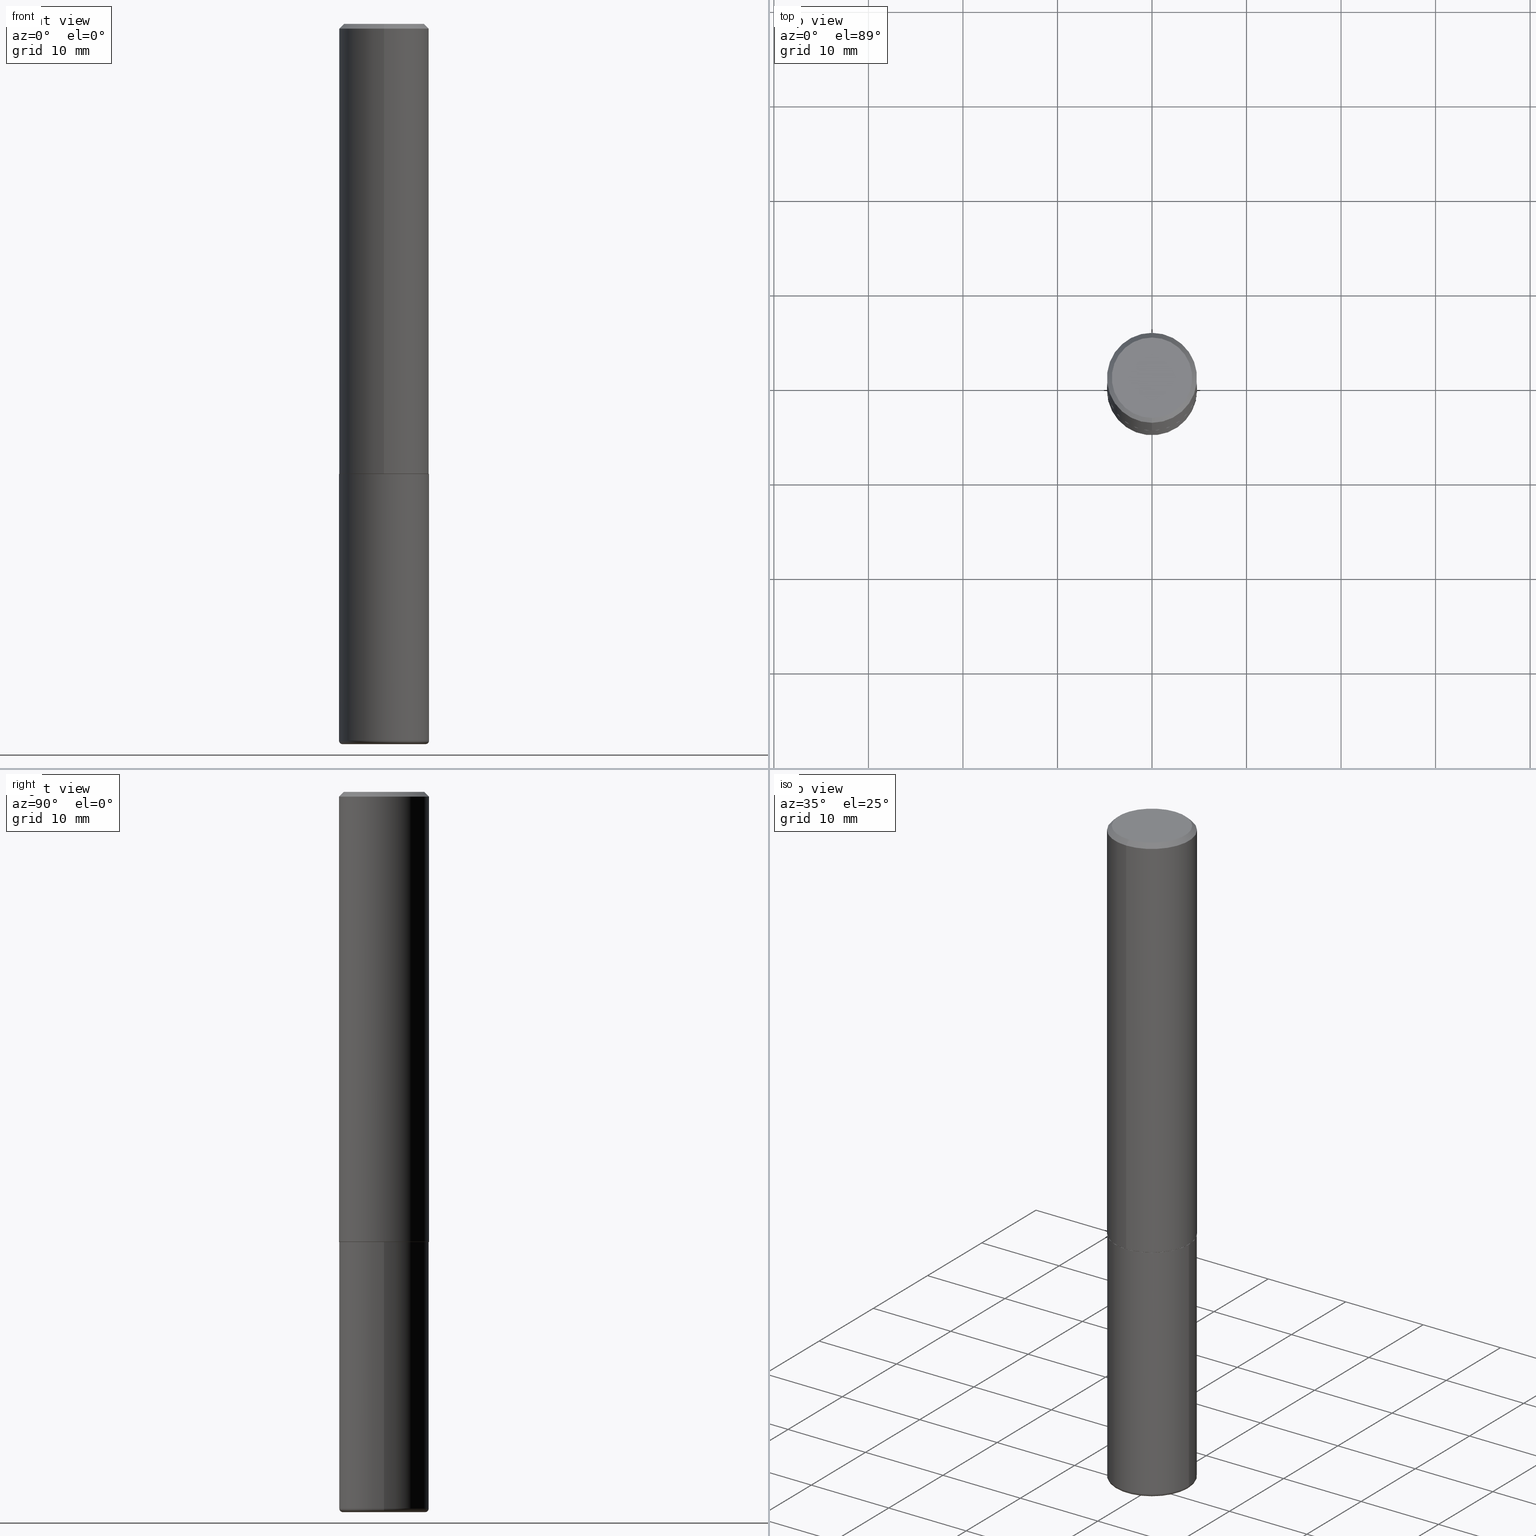
[diagram: canonical four-view strip — front | top / right | iso, engineering-drawing reading convention]
A machine part, canonical four-view strip (front | top / right | iso — engineering-drawing reading convention). The complete STEP part file that produces these views, byte-faithful:
ISO-10303-21;
HEADER;
FILE_DESCRIPTION (( 'STEP AP203' ),
    '1' );
FILE_NAME ('37481.STEP',
    '2024-03-02T02:20:10',
    ( '' ),
    ( '' ),
    'SwSTEP 2.0',
    'SolidWorks 2023',
    '' );
FILE_SCHEMA (( 'CONFIG_CONTROL_DESIGN' ));
ENDSEC;

DATA;
#1 = PRODUCT_DEFINITION_SHAPE ( 'NONE', 'NONE',  #308 ) ;
#2 = CARTESIAN_POINT ( 'NONE',  ( 1.774244268543582685E-45, -2.533246014083036310E-31, -7.255368094819153633E-17 ) ) ;
#3 = CONICAL_SURFACE ( 'NONE', #170, 0.1864999999999999714, 0.7853981633975165577 ) ;
#4 = APPROVAL_DATE_TIME ( #112, #234 ) ;
#5 = CYLINDRICAL_SURFACE ( 'NONE', #243, 0.1874999999999999722 ) ;
#6 = ADVANCED_FACE ( 'NONE', ( #345 ), #281, .T. ) ;
#7 = DIRECTION ( 'NONE',  ( -6.982962677686264344E-15, -1.000000000000000000, 3.491547197849207244E-15 ) ) ;
#8 = ORIENTED_EDGE ( 'NONE', *, *, #11, .T. ) ;
#9 = DIRECTION ( 'NONE',  ( 6.982962677686265922E-15, 1.000000000000000000, -3.491547197849208033E-15 ) ) ;
#10 = EDGE_LOOP ( 'NONE', ( #252, #114 ) ) ;
#11 = EDGE_CURVE ( 'NONE', #27, #251, #150, .T. ) ;
#12 = VERTEX_POINT ( 'NONE', #61 ) ;
#13 = EDGE_LOOP ( 'NONE', ( #412, #143 ) ) ;
#14 = LINE ( 'NONE', #401, #256 ) ;
#15 = ORIENTED_EDGE ( 'NONE', *, *, #241, .T. ) ;
#16 = EDGE_CURVE ( 'NONE', #223, #51, #372, .T. ) ;
#17 = FACE_OUTER_BOUND ( 'NONE', #118, .T. ) ;
#18 = AXIS2_PLACEMENT_3D ( 'NONE', #386, #240, #356 ) ;
#19 = DIRECTION ( 'NONE',  ( 1.000000000000000000, -6.982962677686266711E-15, 4.876176775795935793E-29 ) ) ;
#20 = PERSON_AND_ORGANIZATION_ROLE ( 'design_supplier' ) ;
#21 = VECTOR ( 'NONE', #139, 39.37007874015748143 ) ;
#22 = FACE_OUTER_BOUND ( 'NONE', #341, .T. ) ;
#23 = LINE ( 'NONE', #156, #403 ) ;
#24 = ORIENTED_EDGE ( 'NONE', *, *, #371, .F. ) ;
#25 = ORIENTED_EDGE ( 'NONE', *, *, #202, .T. ) ;
#26 = ADVANCED_FACE ( 'NONE', ( #132 ), #160, .T. ) ;
#27 = VERTEX_POINT ( 'NONE', #192 ) ;
#28 = AXIS2_PLACEMENT_3D ( 'NONE', #370, #195, #131 ) ;
#29 = CC_DESIGN_SECURITY_CLASSIFICATION ( #177, ( #48 ) ) ;
#30 = DIRECTION ( 'NONE',  ( -6.982962677686265922E-15, -1.000000000000000000, 2.929595703661408850E-15 ) ) ;
#31 = EDGE_LOOP ( 'NONE', ( #8, #280, #287, #406 ) ) ;
#32 = DATE_AND_TIME ( #227, #249 ) ;
#33 = CARTESIAN_POINT ( 'NONE',  ( 4.585167782038132942E-29, -6.546650995967265555E-15, -1.875000000000000000 ) ) ;
#34 = LINE ( 'NONE', #368, #88 ) ;
#35 = VECTOR ( 'NONE', #196, 39.37007874015748143 ) ;
#36 = LOCAL_TIME ( 21, 20, 10.00000000000000000, #410 ) ;
#37 = DIRECTION ( 'NONE',  ( 7.105427357601001859E-15, 1.000000000000000000, -3.491481338843145583E-15 ) ) ;
#38 = DIRECTION ( 'NONE',  ( 1.000000000000000000, -6.982962677686266711E-15, 0.000000000000000000 ) ) ;
#39 = EDGE_CURVE ( 'NONE', #221, #338, #128, .T. ) ;
#40 =( NAMED_UNIT ( * ) PLANE_ANGLE_UNIT ( ) SI_UNIT ( $, .RADIAN. ) );
#41 = CARTESIAN_POINT ( 'NONE',  ( 7.299724386462632472E-29, -1.042207179644678967E-14, -2.984999999999999876 ) ) ;
#42 = TOROIDAL_SURFACE ( 'NONE', #299, 0.1725000000000000144, 0.01499999999999983985 ) ;
#43 = CC_DESIGN_PERSON_AND_ORGANIZATION_ASSIGNMENT ( #348, #20, ( #48 ) ) ;
#44 = VERTEX_POINT ( 'NONE', #350 ) ;
#45 = ADVANCED_FACE ( 'NONE', ( #289 ), #58, .T. ) ;
#46 = ORIENTED_EDGE ( 'NONE', *, *, #148, .F. ) ;
#47 = AXIS2_PLACEMENT_3D ( 'NONE', #98, #258, #123 ) ;
#48 = PRODUCT_DEFINITION_FORMATION_WITH_SPECIFIED_SOURCE ( 'ANY', '', #230, .NOT_KNOWN. ) ;
#49 = EDGE_LOOP ( 'NONE', ( #336, #362, #283, #79 ) ) ;
#50 = EDGE_LOOP ( 'NONE', ( #261, #188, #247, #193 ) ) ;
#51 = VERTEX_POINT ( 'NONE', #125 ) ;
#52 = CARTESIAN_POINT ( 'NONE',  ( 7.299724386462632472E-29, -1.042207179644678967E-14, -2.984999999999999876 ) ) ;
#53 = CARTESIAN_POINT ( 'NONE',  ( -0.1874999999999999722, 1.332267629550187651E-15, -9.223003294227946589E-30 ) ) ;
#54 = APPLICATION_PROTOCOL_DEFINITION ( 'international standard', 'config_control_design', 1994, #330 ) ;
#55 = DIRECTION ( 'NONE',  ( -2.445468806185136597E-29, 3.491481338843145583E-15, 1.000000000000000000 ) ) ;
#56 = DATE_TIME_ROLE ( 'creation_date' ) ;
#57 = CARTESIAN_POINT ( 'NONE',  ( -1.286343374582161379E-15, -0.1875000000000000555, -0.01999999999999938979 ) ) ;
#58 = CYLINDRICAL_SURFACE ( 'NONE', #366, 0.1874999999999999722 ) ;
#59 = PERSON_AND_ORGANIZATION ( #236, #152 ) ;
#60 = CC_DESIGN_DATE_AND_TIME_ASSIGNMENT ( #126, #56, ( #308 ) ) ;
#61 = CARTESIAN_POINT ( 'NONE',  ( -1.286343374582161379E-15, -0.1875000000000000555, -0.01999999999999938979 ) ) ;
#62 = PERSON_AND_ORGANIZATION ( #236, #152 ) ;
#63 = AXIS2_PLACEMENT_3D ( 'NONE', #185, #122, #127 ) ;
#64 = AXIS2_PLACEMENT_3D ( 'NONE', #71, #354, #65 ) ;
#65 = DIRECTION ( 'NONE',  ( -6.982962677686265922E-15, -1.000000000000000000, 2.913971193241877611E-15 ) ) ;
#66 = CARTESIAN_POINT ( 'NONE',  ( 0.1725000000000000144, -1.167900507843031484E-14, -2.999999999999999556 ) ) ;
#67 = EDGE_CURVE ( 'NONE', #338, #51, #383, .T. ) ;
#68 = DIRECTION ( 'NONE',  ( -2.445422817087004124E-29, 3.491547197849208033E-15, 1.000000000000000000 ) ) ;
#69 = ADVANCED_FACE ( 'NONE', ( #229 ), #102, .T. ) ;
#70 = ADVANCED_BREP_SHAPE_REPRESENTATION ( '37481', ( #309, #174, #328 ), #353 ) ;
#71 = CARTESIAN_POINT ( 'NONE',  ( 4.582722359221045613E-29, -6.543159448769415354E-15, -1.874000000000000110 ) ) ;
#72 = CC_DESIGN_PERSON_AND_ORGANIZATION_ASSIGNMENT ( #59, #197, ( #177 ) ) ;
#73 = VERTEX_POINT ( 'NONE', #226 ) ;
#74 = CARTESIAN_POINT ( 'NONE',  ( 4.890845634174019353E-31, -6.983094395698430266E-17, -0.02000000000000004205 ) ) ;
#75 = AXIS2_PLACEMENT_3D ( 'NONE', #52, #284, #346 ) ;
#76 = AXIS2_PLACEMENT_3D ( 'NONE', #104, #305, #100 ) ;
#77 = EDGE_CURVE ( 'NONE', #44, #27, #377, .T. ) ;
#78 = ORIENTED_EDGE ( 'NONE', *, *, #297, .F. ) ;
#79 = ORIENTED_EDGE ( 'NONE', *, *, #358, .F. ) ;
#80 = AXIS2_PLACEMENT_3D ( 'NONE', #87, #343, #324 ) ;
#81 = AXIS2_PLACEMENT_3D ( 'NONE', #74, #355, #385 ) ;
#82 = ORIENTED_EDGE ( 'NONE', *, *, #39, .T. ) ;
#83 = EDGE_CURVE ( 'NONE', #147, #221, #390, .T. ) ;
#84 = DIRECTION ( 'NONE',  ( -6.982962677686265922E-15, -1.000000000000000000, 3.491547197849208033E-15 ) ) ;
#85 = DIRECTION ( 'NONE',  ( -2.445468806185136597E-29, 3.491481338843145583E-15, 1.000000000000000000 ) ) ;
#86 = CC_DESIGN_PERSON_AND_ORGANIZATION_ASSIGNMENT ( #375, #161, ( #48 ) ) ;
#87 = CARTESIAN_POINT ( 'NONE',  ( 4.582722359221045613E-29, -6.543159448769415354E-15, -1.874000000000000110 ) ) ;
#88 = VECTOR ( 'NONE', #228, 39.37007874015748143 ) ;
#89 = VERTEX_POINT ( 'NONE', #66 ) ;
#90 = DIRECTION ( 'NONE',  ( 0.000000000000000000, 0.000000000000000000, 1.000000000000000000 ) ) ;
#91 = LOCAL_TIME ( 21, 20, 10.00000000000000000, #154 ) ;
#92 = ADVANCED_FACE ( 'NONE', ( #137 ), #200, .F. ) ;
#93 = FACE_OUTER_BOUND ( 'NONE', #31, .T. ) ;
#94 = CARTESIAN_POINT ( 'NONE',  ( -1.302322539388442648E-15, -0.1865000000000065217, -1.874999999999999556 ) ) ;
#95 = COORDINATED_UNIVERSAL_TIME_OFFSET ( 5, 0, .BEHIND. ) ;
#96 = APPROVAL ( #326, 'UNSPECIFIED' ) ;
#97 = CARTESIAN_POINT ( 'NONE',  ( 1.239475875289312499E-15, 0.1675000000000000655, -6.573878365879339248E-16 ) ) ;
#98 = CARTESIAN_POINT ( 'NONE',  ( 4.890845634174019353E-31, -6.983094395698430266E-17, -0.02000000000000004205 ) ) ;
#99 = EDGE_CURVE ( 'NONE', #27, #12, #34, .T. ) ;
#100 = DIRECTION ( 'NONE',  ( 1.000000000000000000, -6.982962677686261977E-15, 0.000000000000000000 ) ) ;
#101 = APPROVAL_ROLE ( '' ) ;
#102 = TOROIDAL_SURFACE ( 'NONE', #254, 0.1725000000000000144, 0.01499999999999983985 ) ;
#103 = AXIS2_PLACEMENT_3D ( 'NONE', #207, #144, #9 ) ;
#104 = CARTESIAN_POINT ( 'NONE',  ( 7.336406418555408669E-29, -1.047444401652943478E-14, -2.999999999999999556 ) ) ;
#105 =( NAMED_UNIT ( * ) SI_UNIT ( $, .STERADIAN. ) SOLID_ANGLE_UNIT ( ) );
#106 = APPROVAL_ROLE ( '' ) ;
#107 = EDGE_CURVE ( 'NONE', #147, #89, #273, .T. ) ;
#108 = CIRCLE ( 'NONE', #322, 0.1864999999999999714 ) ;
#109 = DIRECTION ( 'NONE',  ( -2.445468806185136597E-29, 3.491481338843145583E-15, 1.000000000000000000 ) ) ;
#110 = CC_DESIGN_PERSON_AND_ORGANIZATION_ASSIGNMENT ( #62, #382, ( #308 ) ) ;
#111 = LINE ( 'NONE', #180, #21 ) ;
#112 = DATE_AND_TIME ( #301, #146 ) ;
#113 = DIRECTION ( 'NONE',  ( -2.445422817087004124E-29, 3.491547197849208033E-15, 1.000000000000000000 ) ) ;
#114 = ORIENTED_EDGE ( 'NONE', *, *, #365, .T. ) ;
#115 = FACE_OUTER_BOUND ( 'NONE', #363, .T. ) ;
#116 = CIRCLE ( 'NONE', #238, 0.1874999999999999722 ) ;
#117 = ORIENTED_EDGE ( 'NONE', *, *, #83, .F. ) ;
#118 = EDGE_LOOP ( 'NONE', ( #153, #145 ) ) ;
#119 = EDGE_CURVE ( 'NONE', #223, #221, #315, .T. ) ;
#120 = DIRECTION ( 'NONE',  ( 4.937700262164541731E-15, 0.7071067811865442421, -0.7071067811865507924 ) ) ;
#121 = ORIENTED_EDGE ( 'NONE', *, *, #202, .F. ) ;
#122 = DIRECTION ( 'NONE',  ( -2.445468806185136597E-29, 3.491481338843145583E-15, 1.000000000000000000 ) ) ;
#123 = DIRECTION ( 'NONE',  ( 6.982962677686266711E-15, 1.000000000000000000, -3.483106191921935949E-15 ) ) ;
#124 = FACE_OUTER_BOUND ( 'NONE', #49, .T. ) ;
#125 = CARTESIAN_POINT ( 'NONE',  ( 0.1875000000000000278, -7.855833012397073715E-15, -1.875000000000000000 ) ) ;
#126 = DATE_AND_TIME ( #271, #367 ) ;
#127 = DIRECTION ( 'NONE',  ( 1.000000000000000000, -6.982962677686263555E-15, 0.000000000000000000 ) ) ;
#128 = LINE ( 'NONE', #53, #182 ) ;
#129 = SECURITY_CLASSIFICATION_LEVEL ( 'unclassified' ) ;
#130 = AXIS2_PLACEMENT_3D ( 'NONE', #323, #393, #38 ) ;
#131 = DIRECTION ( 'NONE',  ( -6.982962677686265922E-15, -1.000000000000000000, 2.929595703661408850E-15 ) ) ;
#132 = FACE_OUTER_BOUND ( 'NONE', #13, .T. ) ;
#133 = PERSON_AND_ORGANIZATION ( #236, #152 ) ;
#134 = DIRECTION ( 'NONE',  ( 1.000000000000000000, 0.000000000000000000, 0.000000000000000000 ) ) ;
#135 = CARTESIAN_POINT ( 'NONE',  ( 4.585167782038132942E-29, -6.546650995967265555E-15, -1.875000000000000000 ) ) ;
#136 = AXIS2_PLACEMENT_3D ( 'NONE', #349, #260, #191 ) ;
#137 = FACE_OUTER_BOUND ( 'NONE', #352, .T. ) ;
#138 = CC_DESIGN_DATE_AND_TIME_ASSIGNMENT ( #242, #168, ( #177 ) ) ;
#139 = DIRECTION ( 'NONE',  ( -2.445422817087003844E-29, 3.491547197849208033E-15, 1.000000000000000000 ) ) ;
#140 = CIRCLE ( 'NONE', #165, 0.1864999999999999714 ) ;
#141 = CARTESIAN_POINT ( 'NONE',  ( 4.890845634174019353E-31, -6.983094395698430266E-17, -0.02000000000000004205 ) ) ;
#142 = ADVANCED_FACE ( 'NONE', ( #93 ), #159, .T. ) ;
#143 = ORIENTED_EDGE ( 'NONE', *, *, #107, .F. ) ;
#144 = DIRECTION ( 'NONE',  ( 2.445422817087003844E-29, -3.491547197849208033E-15, -1.000000000000000000 ) ) ;
#145 = ORIENTED_EDGE ( 'NONE', *, *, #306, .F. ) ;
#146 = LOCAL_TIME ( 21, 20, 10.00000000000000000, #172 ) ;
#147 = VERTEX_POINT ( 'NONE', #405 ) ;
#148 = EDGE_CURVE ( 'NONE', #221, #223, #376, .T. ) ;
#149 = VERTEX_POINT ( 'NONE', #411 ) ;
#150 = CIRCLE ( 'NONE', #80, 0.1875000000000001943 ) ;
#151 = CARTESIAN_POINT ( 'NONE',  ( 4.585167782038132942E-29, -6.546650995967265555E-15, -1.875000000000000000 ) ) ;
#152 = ORGANIZATION ( 'UNSPECIFIED', 'UNSPECIFIED', '' ) ;
#153 = ORIENTED_EDGE ( 'NONE', *, *, #255, .F. ) ;
#154 = COORDINATED_UNIVERSAL_TIME_OFFSET ( 5, 0, .BEHIND. ) ;
#155 = ADVANCED_FACE ( 'NONE', ( #17 ), #317, .F. ) ;
#156 = CARTESIAN_POINT ( 'NONE',  ( 1.325162202192632397E-15, 0.1864999999999934210, -1.875000000000000666 ) ) ;
#157 = DIRECTION ( 'NONE',  ( -2.445468806185136877E-29, 3.491481338843145188E-15, 1.000000000000000000 ) ) ;
#158 = PERSON_AND_ORGANIZATION ( #236, #152 ) ;
#159 = CYLINDRICAL_SURFACE ( 'NONE', #136, 0.1875000000000000833 ) ;
#160 = PLANE ( 'NONE',  #332 ) ;
#161 = PERSON_AND_ORGANIZATION_ROLE ( 'creator' ) ;
#162 = VECTOR ( 'NONE', #157, 39.37007874015748143 ) ;
#163 = ORIENTED_EDGE ( 'NONE', *, *, #198, .T. ) ;
#164 = CARTESIAN_POINT ( 'NONE',  ( 0.000000000000000000, 0.000000000000000000, 0.000000000000000000 ) ) ;
#165 = AXIS2_PLACEMENT_3D ( 'NONE', #33, #327, #167 ) ;
#166 = ORIENTED_EDGE ( 'NONE', *, *, #169, .T. ) ;
#167 = DIRECTION ( 'NONE',  ( -6.982962677686265922E-15, -1.000000000000000000, 2.929595703661408850E-15 ) ) ;
#168 = DATE_TIME_ROLE ( 'classification_date' ) ;
#169 = EDGE_CURVE ( 'NONE', #73, #12, #262, .T. ) ;
#170 = AXIS2_PLACEMENT_3D ( 'NONE', #135, #68, #201 ) ;
#171 = ADVANCED_FACE ( 'NONE', ( #219 ), #248, .T. ) ;
#172 = COORDINATED_UNIVERSAL_TIME_OFFSET ( 5, 0, .BEHIND. ) ;
#173 = CARTESIAN_POINT ( 'NONE',  ( -0.1875000000000000278, -7.152032023838655550E-15, -1.875000000000000000 ) ) ;
#174 = MANIFOLD_SOLID_BREP ( 'Body-Move/Copy2[2]', #292 ) ;
#175 = AXIS2_PLACEMENT_3D ( 'NONE', #222, #267, #344 ) ;
#176 = DIRECTION ( 'NONE',  ( -6.982962677686266711E-15, -1.000000000000000000, 3.491481338843145583E-15 ) ) ;
#177 = SECURITY_CLASSIFICATION ( '', '', #129 ) ;
#178 = ORIENTED_EDGE ( 'NONE', *, *, #77, .T. ) ;
#179 = CC_DESIGN_PERSON_AND_ORGANIZATION_ASSIGNMENT ( #290, #321, ( #230 ) ) ;
#180 = CARTESIAN_POINT ( 'NONE',  ( 1.332267629550188243E-15, 0.1875000000000000833, -6.546650995967267527E-16 ) ) ;
#181 = ORIENTED_EDGE ( 'NONE', *, *, #16, .F. ) ;
#182 = VECTOR ( 'NONE', #296, 39.37007874015748143 ) ;
#183 = CIRCLE ( 'NONE', #293, 0.1675000000000000655 ) ;
#184 = ORIENTED_EDGE ( 'NONE', *, *, #99, .T. ) ;
#185 = CARTESIAN_POINT ( 'NONE',  ( 7.299724386462632472E-29, -1.042207179644678967E-14, -2.984999999999999876 ) ) ;
#186 = ORIENTED_EDGE ( 'NONE', *, *, #220, .F. ) ;
#187 = DIRECTION ( 'NONE',  ( -2.445468806185136597E-29, 3.491481338843145583E-15, 1.000000000000000000 ) ) ;
#188 = ORIENTED_EDGE ( 'NONE', *, *, #286, .F. ) ;
#189 = DIRECTION ( 'NONE',  ( -6.982962677686266711E-15, -1.000000000000000000, 3.491547197849207639E-15 ) ) ;
#190 = CIRCLE ( 'NONE', #175, 0.1874999999999999722 ) ;
#191 = DIRECTION ( 'NONE',  ( -6.982962677686266711E-15, -1.000000000000000000, 3.491547197849207639E-15 ) ) ;
#192 = CARTESIAN_POINT ( 'NONE',  ( -1.309305502066130438E-15, -0.1875000000000067446, -1.873999999999999444 ) ) ;
#193 = ORIENTED_EDGE ( 'NONE', *, *, #371, .T. ) ;
#194 = CALENDAR_DATE ( 2024, 1, 3 ) ;
#195 = DIRECTION ( 'NONE',  ( -2.445422817087004124E-29, 3.491547197849208033E-15, 1.000000000000000000 ) ) ;
#196 = DIRECTION ( 'NONE',  ( -4.937700262164884886E-15, -0.7071067811865933139, 0.7071067811865017205 ) ) ;
#197 = PERSON_AND_ORGANIZATION_ROLE ( 'classification_officer' ) ;
#198 = EDGE_CURVE ( 'NONE', #12, #295, #190, .T. ) ;
#199 = DIRECTION ( 'NONE',  ( -1.000000000000000000, 6.982962677686265922E-15, -4.876176775795935793E-29 ) ) ;
#200 = PLANE ( 'NONE',  #18 ) ;
#201 = DIRECTION ( 'NONE',  ( -6.982962677686265922E-15, -1.000000000000000000, 2.929595703661408850E-15 ) ) ;
#202 = EDGE_CURVE ( 'NONE', #149, #251, #23, .T. ) ;
#203 = DESIGN_CONTEXT ( 'detailed design', #378, 'design' ) ;
#204 = VECTOR ( 'NONE', #379, 39.37007874015748143 ) ;
#205 =( LENGTH_UNIT ( ) NAMED_UNIT ( * ) SI_UNIT ( $, .METRE. ) );
#206 = APPROVAL_STATUS ( 'not_yet_approved' ) ;
#207 = CARTESIAN_POINT ( 'NONE',  ( 1.169646248512449792E-15, 0.1675000000000000655, -6.211109961138383353E-16 ) ) ;
#208 = ORIENTED_EDGE ( 'NONE', *, *, #241, .F. ) ;
#209 = AXIS2_PLACEMENT_3D ( 'NONE', #278, #37, #276 ) ;
#210 = APPROVAL_PERSON_ORGANIZATION ( #133, #96, #416 ) ;
#211 = CARTESIAN_POINT ( 'NONE',  ( 0.1725000000000000144, -1.162663285834766973E-14, -2.984999999999999876 ) ) ;
#212 = ORIENTED_EDGE ( 'NONE', *, *, #365, .F. ) ;
#213 = ORIENTED_EDGE ( 'NONE', *, *, #297, .T. ) ;
#214 = VERTEX_POINT ( 'NONE', #97 ) ;
#215 = FACE_OUTER_BOUND ( 'NONE', #304, .T. ) ;
#216 = AXIS2_PLACEMENT_3D ( 'NONE', #373, #187, #294 ) ;
#217 = CIRCLE ( 'NONE', #64, 0.1875000000000001943 ) ;
#218 = ORIENTED_EDGE ( 'NONE', *, *, #67, .T. ) ;
#219 = FACE_OUTER_BOUND ( 'NONE', #359, .T. ) ;
#220 = EDGE_CURVE ( 'NONE', #214, #295, #14, .T. ) ;
#221 = VERTEX_POINT ( 'NONE', #288 ) ;
#222 = CARTESIAN_POINT ( 'NONE',  ( 4.890845634174019353E-31, -6.983094395698430266E-17, -0.02000000000000004205 ) ) ;
#223 = VERTEX_POINT ( 'NONE', #257 ) ;
#224 = APPLICATION_PROTOCOL_DEFINITION ( 'international standard', 'config_control_design', 1994, #378 ) ;
#225 = APPROVAL_PERSON_ORGANIZATION ( #158, #384, #101 ) ;
#226 = CARTESIAN_POINT ( 'NONE',  ( -1.217738394604446442E-15, -0.1675000000000000655, 5.122804746915509754E-16 ) ) ;
#227 = CALENDAR_DATE ( 2024, 1, 3 ) ;
#228 = DIRECTION ( 'NONE',  ( -2.445422817087003844E-29, 3.491547197849208033E-15, 1.000000000000000000 ) ) ;
#229 = FACE_OUTER_BOUND ( 'NONE', #310, .T. ) ;
#230 = PRODUCT ( '37481', '37481', '', ( #415 ) ) ;
#231 = ADVANCED_FACE ( 'NONE', ( #124 ), #42, .T. ) ;
#232 = CARTESIAN_POINT ( 'NONE',  ( 1.397167340320572577E-28, -9.723640385667771446E-16, -2.999999999999999556 ) ) ;
#233 = APPROVAL_STATUS ( 'not_yet_approved' ) ;
#234 = APPROVAL ( #206, 'UNSPECIFIED' ) ;
#235 = FACE_OUTER_BOUND ( 'NONE', #10, .T. ) ;
#236 = PERSON ( 'UNSPECIFIED', 'UNSPECIFIED', 'UNSPECIFIED', ('UNSPECIFIED'), ('UNSPECIFIED'), ('UNSPECIFIED') ) ;
#237 = APPROVAL_DATE_TIME ( #264, #384 ) ;
#238 = AXIS2_PLACEMENT_3D ( 'NONE', #141, #360, #342 ) ;
#239 = PLANE ( 'NONE',  #103 ) ;
#240 = DIRECTION ( 'NONE',  ( 2.438088387897960049E-29, -3.491481338843145188E-15, -1.000000000000000000 ) ) ;
#241 = EDGE_CURVE ( 'NONE', #51, #338, #265, .T. ) ;
#242 = DATE_AND_TIME ( #269, #91 ) ;
#243 = AXIS2_PLACEMENT_3D ( 'NONE', #300, #109, #329 ) ;
#244 = UNCERTAINTY_MEASURE_WITH_UNIT (LENGTH_MEASURE( 1.000000000000000082E-05 ), #388, 'distance_accuracy_value', 'NONE');
#245 = DIRECTION ( 'NONE',  ( -6.982962677686264344E-15, -1.000000000000000000, 3.491547197849207244E-15 ) ) ;
#246 = CARTESIAN_POINT ( 'NONE',  ( 1.309305502066175205E-15, 0.1874999999999999167, -0.02000000000000069431 ) ) ;
#247 = ORIENTED_EDGE ( 'NONE', *, *, #220, .T. ) ;
#248 = CONICAL_SURFACE ( 'NONE', #28, 0.1864999999999999714, 0.7853981633975165577 ) ;
#249 = LOCAL_TIME ( 21, 20, 10.00000000000000000, #351 ) ;
#250 = EDGE_CURVE ( 'NONE', #251, #295, #111, .T. ) ;
#251 = VERTEX_POINT ( 'NONE', #270 ) ;
#252 = ORIENTED_EDGE ( 'NONE', *, *, #286, .T. ) ;
#253 = ORIENTED_EDGE ( 'NONE', *, *, #358, .T. ) ;
#254 = AXIS2_PLACEMENT_3D ( 'NONE', #347, #55, #319 ) ;
#255 = EDGE_CURVE ( 'NONE', #44, #149, #108, .T. ) ;
#256 = VECTOR ( 'NONE', #120, 39.37007874015748143 ) ;
#257 = CARTESIAN_POINT ( 'NONE',  ( 0.1874999999999999167, -1.173137729851296152E-14, -2.984999999999999876 ) ) ;
#258 = DIRECTION ( 'NONE',  ( 2.445422817087004124E-29, -3.491547197849208033E-15, -1.000000000000000000 ) ) ;
#259 = DIRECTION ( 'NONE',  ( -2.445422817087004124E-29, 3.491547197849208033E-15, 1.000000000000000000 ) ) ;
#260 = DIRECTION ( 'NONE',  ( -2.445422817087004124E-29, 3.491547197849208033E-15, 1.000000000000000000 ) ) ;
#261 = ORIENTED_EDGE ( 'NONE', *, *, #169, .F. ) ;
#262 = LINE ( 'NONE', #57, #204 ) ;
#263 = DIRECTION ( 'NONE',  ( 1.000000000000000000, -6.982962677686266711E-15, 0.000000000000000000 ) ) ;
#264 = DATE_AND_TIME ( #194, #36 ) ;
#265 = CIRCLE ( 'NONE', #130, 0.1875000000000000278 ) ;
#266 = EDGE_CURVE ( 'NONE', #89, #147, #340, .T. ) ;
#267 = DIRECTION ( 'NONE',  ( -2.445422817087004124E-29, 3.491547197849208033E-15, 1.000000000000000000 ) ) ;
#268 = ORIENTED_EDGE ( 'NONE', *, *, #148, .T. ) ;
#269 = CALENDAR_DATE ( 2024, 1, 3 ) ;
#270 = CARTESIAN_POINT ( 'NONE',  ( 1.332267629550211909E-15, 0.1874999999999936162, -1.874000000000000554 ) ) ;
#271 = CALENDAR_DATE ( 2024, 1, 3 ) ;
#272 = ADVANCED_FACE ( 'NONE', ( #235 ), #239, .F. ) ;
#273 = CIRCLE ( 'NONE', #216, 0.1725000000000000144 ) ;
#274 = CARTESIAN_POINT ( 'NONE',  ( 1.774244268543582685E-45, -2.533246014083036310E-31, -7.255368094819153633E-17 ) ) ;
#275 = CIRCLE ( 'NONE', #335, 0.01499999999999983985 ) ;
#276 = DIRECTION ( 'NONE',  ( -1.000000000000000000, 7.105427357600937172E-15, 0.000000000000000000 ) ) ;
#277 = PRODUCT_RELATED_PRODUCT_CATEGORY ( 'detail', '', ( #230 ) ) ;
#278 = CARTESIAN_POINT ( 'NONE',  ( -0.1725000000000000144, -9.196385577260614576E-15, -2.984999999999999876 ) ) ;
#279 = DIRECTION ( 'NONE',  ( 1.000000000000000000, -6.982962677686269077E-15, 4.883557194083112901E-29 ) ) ;
#280 = ORIENTED_EDGE ( 'NONE', *, *, #250, .T. ) ;
#281 = CONICAL_SURFACE ( 'NONE', #47, 0.1874999999999999722, 0.7853981633974471688 ) ;
#282 = CC_DESIGN_APPROVAL ( #384, ( #48 ) ) ;
#283 = ORIENTED_EDGE ( 'NONE', *, *, #119, .F. ) ;
#284 = DIRECTION ( 'NONE',  ( -2.445468806185136597E-29, 3.491481338843145583E-15, 1.000000000000000000 ) ) ;
#285 = ORIENTED_EDGE ( 'NONE', *, *, #306, .T. ) ;
#286 = EDGE_CURVE ( 'NONE', #214, #73, #183, .T. ) ;
#287 = ORIENTED_EDGE ( 'NONE', *, *, #198, .F. ) ;
#288 = CARTESIAN_POINT ( 'NONE',  ( -0.1874999999999999167, -9.089804166896601820E-15, -2.984999999999999876 ) ) ;
#289 = FACE_OUTER_BOUND ( 'NONE', #318, .T. ) ;
#290 = PERSON_AND_ORGANIZATION ( #236, #152 ) ;
#291 = ORIENTED_EDGE ( 'NONE', *, *, #39, .F. ) ;
#292 = CLOSED_SHELL ( 'NONE', ( #312, #142, #334, #6, #389, #171, #155, #272 ) ) ;
#293 = AXIS2_PLACEMENT_3D ( 'NONE', #274, #395, #245 ) ;
#294 = DIRECTION ( 'NONE',  ( 1.000000000000000000, -6.982962677686261977E-15, 0.000000000000000000 ) ) ;
#295 = VERTEX_POINT ( 'NONE', #246 ) ;
#296 = DIRECTION ( 'NONE',  ( -2.445468806185136877E-29, 3.491481338843145188E-15, 1.000000000000000000 ) ) ;
#297 = EDGE_CURVE ( 'NONE', #251, #27, #217, .T. ) ;
#298 = FACE_OUTER_BOUND ( 'NONE', #337, .T. ) ;
#299 = AXIS2_PLACEMENT_3D ( 'NONE', #41, #392, #279 ) ;
#300 = CARTESIAN_POINT ( 'NONE',  ( 0.000000000000000000, 0.000000000000000000, 0.000000000000000000 ) ) ;
#301 = CALENDAR_DATE ( 2024, 1, 3 ) ;
#302 = AXIS2_PLACEMENT_3D ( 'NONE', #151, #408, #84 ) ;
#303 = DIRECTION ( 'NONE',  ( -2.445422817087004124E-29, 3.491547197849208033E-15, 1.000000000000000000 ) ) ;
#304 = EDGE_LOOP ( 'NONE', ( #380, #213, #184, #24 ) ) ;
#305 = DIRECTION ( 'NONE',  ( -2.445468806185136597E-29, 3.491481338843145583E-15, 1.000000000000000000 ) ) ;
#306 = EDGE_CURVE ( 'NONE', #149, #44, #140, .T. ) ;
#307 = ORIENTED_EDGE ( 'NONE', *, *, #119, .T. ) ;
#308 = PRODUCT_DEFINITION ( 'UNKNOWN', '', #48, #203 ) ;
#309 = MANIFOLD_SOLID_BREP ( 'Body-Move/Copy2[1]', #396 ) ;
#310 = EDGE_LOOP ( 'NONE', ( #117, #364, #253, #46 ) ) ;
#311 = DIRECTION ( 'NONE',  ( 5.024295867788404755E-15, 0.7071067811865981989, 0.7071067811864968355 ) ) ;
#312 = ADVANCED_FACE ( 'NONE', ( #115 ), #3, .T. ) ;
#313 = DIRECTION ( 'NONE',  ( 2.438088387897960049E-29, -3.491481338843145188E-15, -1.000000000000000000 ) ) ;
#314 = APPROVAL_DATE_TIME ( #32, #96 ) ;
#315 = CIRCLE ( 'NONE', #75, 0.1874999999999999722 ) ;
#316 = AXIS2_PLACEMENT_3D ( 'NONE', #2, #303, #7 ) ;
#317 = PLANE ( 'NONE',  #302 ) ;
#318 = EDGE_LOOP ( 'NONE', ( #291, #268, #398, #399 ) ) ;
#319 = DIRECTION ( 'NONE',  ( 1.000000000000000000, -6.982962677686269077E-15, 4.883557194083112901E-29 ) ) ;
#320 = ORIENTED_EDGE ( 'NONE', *, *, #255, .T. ) ;
#321 = PERSON_AND_ORGANIZATION_ROLE ( 'design_owner' ) ;
#322 = AXIS2_PLACEMENT_3D ( 'NONE', #381, #113, #30 ) ;
#323 = CARTESIAN_POINT ( 'NONE',  ( 4.585254011597131119E-29, -6.546527510330898707E-15, -1.875000000000000000 ) ) ;
#324 = DIRECTION ( 'NONE',  ( -6.982962677686265922E-15, -1.000000000000000000, 2.913971193241877611E-15 ) ) ;
#325 = DIMENSIONAL_EXPONENTS ( 1.000000000000000000, 0.000000000000000000, 0.000000000000000000, 0.000000000000000000, 0.000000000000000000, 0.000000000000000000, 0.000000000000000000 ) ;
#326 = APPROVAL_STATUS ( 'not_yet_approved' ) ;
#327 = DIRECTION ( 'NONE',  ( -2.445422817087004124E-29, 3.491547197849208033E-15, 1.000000000000000000 ) ) ;
#328 = AXIS2_PLACEMENT_3D ( 'NONE', #164, #90, #134 ) ;
#329 = DIRECTION ( 'NONE',  ( 1.000000000000000000, -6.982962677686266711E-15, 4.876176775795935793E-29 ) ) ;
#330 = APPLICATION_CONTEXT ( 'configuration controlled 3d designs of mechanical parts and assemblies' ) ;
#331 = LENGTH_MEASURE_WITH_UNIT ( LENGTH_MEASURE( 0.02539999999999999897 ), #205 );
#332 = AXIS2_PLACEMENT_3D ( 'NONE', #232, #313, #199 ) ;
#333 = CC_DESIGN_APPROVAL ( #96, ( #308 ) ) ;
#334 = ADVANCED_FACE ( 'NONE', ( #298 ), #413, .T. ) ;
#335 = AXIS2_PLACEMENT_3D ( 'NONE', #211, #176, #417 ) ;
#336 = ORIENTED_EDGE ( 'NONE', *, *, #266, .T. ) ;
#337 = EDGE_LOOP ( 'NONE', ( #212, #166, #163, #186 ) ) ;
#338 = VERTEX_POINT ( 'NONE', #173 ) ;
#339 = AXIS2_PLACEMENT_3D ( 'NONE', #374, #409, #263 ) ;
#340 = CIRCLE ( 'NONE', #76, 0.1725000000000000144 ) ;
#341 = EDGE_LOOP ( 'NONE', ( #307, #82, #208, #181 ) ) ;
#342 = DIRECTION ( 'NONE',  ( -6.982962677686266711E-15, -1.000000000000000000, 3.483106191921935949E-15 ) ) ;
#343 = DIRECTION ( 'NONE',  ( -2.445422817087004124E-29, 3.491547197849208033E-15, 1.000000000000000000 ) ) ;
#344 = DIRECTION ( 'NONE',  ( -6.982962677686266711E-15, -1.000000000000000000, 3.483106191921935949E-15 ) ) ;
#345 = FACE_OUTER_BOUND ( 'NONE', #50, .T. ) ;
#346 = DIRECTION ( 'NONE',  ( 1.000000000000000000, -6.982962677686263555E-15, 0.000000000000000000 ) ) ;
#347 = CARTESIAN_POINT ( 'NONE',  ( 7.299724386462632472E-29, -1.042207179644678967E-14, -2.984999999999999876 ) ) ;
#348 = PERSON_AND_ORGANIZATION ( #236, #152 ) ;
#349 = CARTESIAN_POINT ( 'NONE',  ( 0.000000000000000000, 0.000000000000000000, 0.000000000000000000 ) ) ;
#350 = CARTESIAN_POINT ( 'NONE',  ( -1.302322539388442648E-15, -0.1865000000000065217, -1.874999999999999556 ) ) ;
#351 = COORDINATED_UNIVERSAL_TIME_OFFSET ( 5, 0, .BEHIND. ) ;
#352 = EDGE_LOOP ( 'NONE', ( #15, #218 ) ) ;
#353 =( GEOMETRIC_REPRESENTATION_CONTEXT ( 3 ) GLOBAL_UNCERTAINTY_ASSIGNED_CONTEXT ( ( #244 ) ) GLOBAL_UNIT_ASSIGNED_CONTEXT ( ( #388, #40, #105 ) ) REPRESENTATION_CONTEXT ( 'NONE', 'WORKASPACE' ) );
#354 = DIRECTION ( 'NONE',  ( -2.445422817087004124E-29, 3.491547197849208033E-15, 1.000000000000000000 ) ) ;
#355 = DIRECTION ( 'NONE',  ( 2.445422817087004124E-29, -3.491547197849208033E-15, -1.000000000000000000 ) ) ;
#356 = DIRECTION ( 'NONE',  ( -1.000000000000000000, 6.982962677686265922E-15, -4.876176775795935793E-29 ) ) ;
#357 = PERSON_AND_ORGANIZATION ( #236, #152 ) ;
#358 = EDGE_CURVE ( 'NONE', #89, #223, #275, .T. ) ;
#359 = EDGE_LOOP ( 'NONE', ( #121, #285, #178, #78 ) ) ;
#360 = DIRECTION ( 'NONE',  ( -2.445422817087004124E-29, 3.491547197849208033E-15, 1.000000000000000000 ) ) ;
#361 = AXIS2_PLACEMENT_3D ( 'NONE', #400, #259, #189 ) ;
#362 = ORIENTED_EDGE ( 'NONE', *, *, #83, .T. ) ;
#363 = EDGE_LOOP ( 'NONE', ( #320, #25, #402, #394 ) ) ;
#364 = ORIENTED_EDGE ( 'NONE', *, *, #107, .T. ) ;
#365 = EDGE_CURVE ( 'NONE', #73, #214, #397, .T. ) ;
#366 = AXIS2_PLACEMENT_3D ( 'NONE', #369, #85, #19 ) ;
#367 = LOCAL_TIME ( 21, 20, 10.00000000000000000, #95 ) ;
#368 = CARTESIAN_POINT ( 'NONE',  ( -1.309305502066175600E-15, -0.1875000000000000833, 6.546650995967267527E-16 ) ) ;
#369 = CARTESIAN_POINT ( 'NONE',  ( 0.000000000000000000, 0.000000000000000000, 0.000000000000000000 ) ) ;
#370 = CARTESIAN_POINT ( 'NONE',  ( 4.585167782038132942E-29, -6.546650995967265555E-15, -1.875000000000000000 ) ) ;
#371 = EDGE_CURVE ( 'NONE', #295, #12, #116, .T. ) ;
#372 = LINE ( 'NONE', #414, #162 ) ;
#373 = CARTESIAN_POINT ( 'NONE',  ( 7.336406418555408669E-29, -1.047444401652943478E-14, -2.999999999999999556 ) ) ;
#374 = CARTESIAN_POINT ( 'NONE',  ( 4.585254011597131119E-29, -6.546527510330898707E-15, -1.875000000000000000 ) ) ;
#375 = PERSON_AND_ORGANIZATION ( #236, #152 ) ;
#376 = CIRCLE ( 'NONE', #63, 0.1874999999999999722 ) ;
#377 = LINE ( 'NONE', #94, #35 ) ;
#378 = APPLICATION_CONTEXT ( 'configuration controlled 3d designs of mechanical parts and assemblies' ) ;
#379 = DIRECTION ( 'NONE',  ( -4.851104656540957964E-15, -0.7071067811865491270, -0.7071067811865459074 ) ) ;
#380 = ORIENTED_EDGE ( 'NONE', *, *, #250, .F. ) ;
#381 = CARTESIAN_POINT ( 'NONE',  ( 4.585167782038132942E-29, -6.546650995967265555E-15, -1.875000000000000000 ) ) ;
#382 = PERSON_AND_ORGANIZATION_ROLE ( 'creator' ) ;
#383 = CIRCLE ( 'NONE', #339, 0.1875000000000000278 ) ;
#384 = APPROVAL ( #233, 'UNSPECIFIED' ) ;
#385 = DIRECTION ( 'NONE',  ( 6.982962677686266711E-15, 1.000000000000000000, -3.483106191921935949E-15 ) ) ;
#386 = CARTESIAN_POINT ( 'NONE',  ( 4.585254011597131119E-29, -6.546527510330898707E-15, -1.875000000000000000 ) ) ;
#387 = SHAPE_DEFINITION_REPRESENTATION ( #1, #70 ) ;
#388 =( CONVERSION_BASED_UNIT ( 'INCH', #331 ) LENGTH_UNIT ( ) NAMED_UNIT ( #325 ) );
#389 = ADVANCED_FACE ( 'NONE', ( #215 ), #407, .T. ) ;
#390 = CIRCLE ( 'NONE', #209, 0.01499999999999983985 ) ;
#391 = CC_DESIGN_APPROVAL ( #234, ( #177 ) ) ;
#392 = DIRECTION ( 'NONE',  ( -2.445468806185136597E-29, 3.491481338843145583E-15, 1.000000000000000000 ) ) ;
#393 = DIRECTION ( 'NONE',  ( -2.445468806185136597E-29, 3.491481338843145583E-15, 1.000000000000000000 ) ) ;
#394 = ORIENTED_EDGE ( 'NONE', *, *, #77, .F. ) ;
#395 = DIRECTION ( 'NONE',  ( -2.445422817087004124E-29, 3.491547197849208033E-15, 1.000000000000000000 ) ) ;
#396 = CLOSED_SHELL ( 'NONE', ( #418, #231, #92, #45, #69, #26 ) ) ;
#397 = CIRCLE ( 'NONE', #316, 0.1675000000000000655 ) ;
#398 = ORIENTED_EDGE ( 'NONE', *, *, #16, .T. ) ;
#399 = ORIENTED_EDGE ( 'NONE', *, *, #67, .F. ) ;
#400 = CARTESIAN_POINT ( 'NONE',  ( 0.000000000000000000, 0.000000000000000000, 0.000000000000000000 ) ) ;
#401 = CARTESIAN_POINT ( 'NONE',  ( 1.309305502066175205E-15, 0.1874999999999999167, -0.02000000000000069431 ) ) ;
#402 = ORIENTED_EDGE ( 'NONE', *, *, #11, .F. ) ;
#403 = VECTOR ( 'NONE', #311, 39.37007874015748143 ) ;
#404 = APPROVAL_PERSON_ORGANIZATION ( #357, #234, #106 ) ;
#405 = CARTESIAN_POINT ( 'NONE',  ( -0.1725000000000000144, -9.169280982119931541E-15, -2.999999999999999556 ) ) ;
#406 = ORIENTED_EDGE ( 'NONE', *, *, #99, .F. ) ;
#407 = CYLINDRICAL_SURFACE ( 'NONE', #361, 0.1875000000000000833 ) ;
#408 = DIRECTION ( 'NONE',  ( -2.445422817087003844E-29, 3.491547197849208033E-15, 1.000000000000000000 ) ) ;
#409 = DIRECTION ( 'NONE',  ( -2.445468806185136597E-29, 3.491481338843145583E-15, 1.000000000000000000 ) ) ;
#410 = COORDINATED_UNIVERSAL_TIME_OFFSET ( 5, 0, .BEHIND. ) ;
#411 = CARTESIAN_POINT ( 'NONE',  ( 1.328714915871433493E-15, 0.1864999999999934210, -1.875000000000000666 ) ) ;
#412 = ORIENTED_EDGE ( 'NONE', *, *, #266, .F. ) ;
#413 = CONICAL_SURFACE ( 'NONE', #81, 0.1874999999999999722, 0.7853981633974471688 ) ;
#414 = CARTESIAN_POINT ( 'NONE',  ( 0.1874999999999999722, -1.309305502066174811E-15, 9.142831454617378210E-30 ) ) ;
#415 = MECHANICAL_CONTEXT ( 'NONE', #330, 'mechanical' ) ;
#416 = APPROVAL_ROLE ( '' ) ;
#417 = DIRECTION ( 'NONE',  ( 1.000000000000000000, -6.982962677686213068E-15, 0.000000000000000000 ) ) ;
#418 = ADVANCED_FACE ( 'NONE', ( #22 ), #5, .T. ) ;
ENDSEC;
END-ISO-10303-21;
